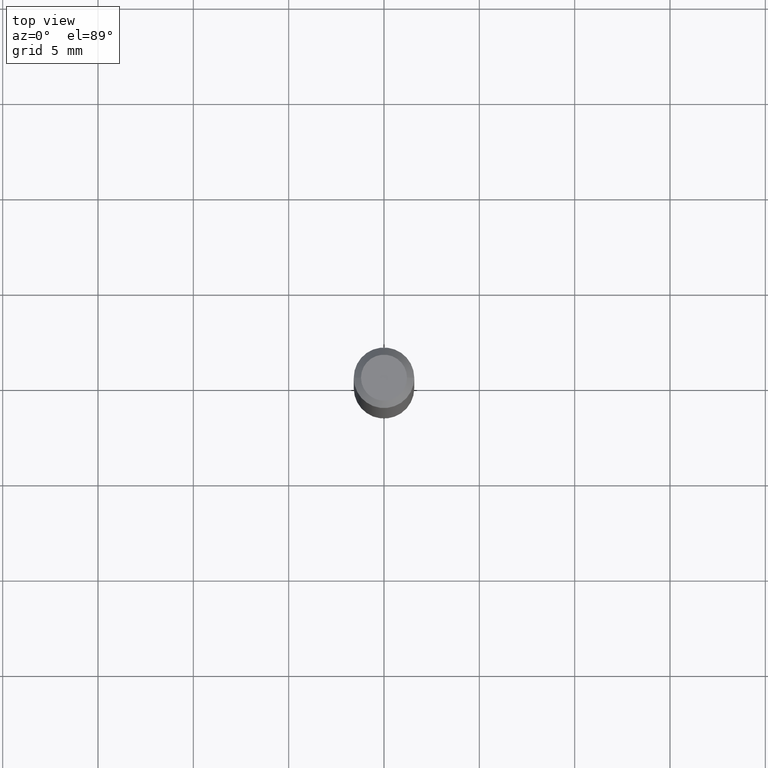
[diagram: clean part render]
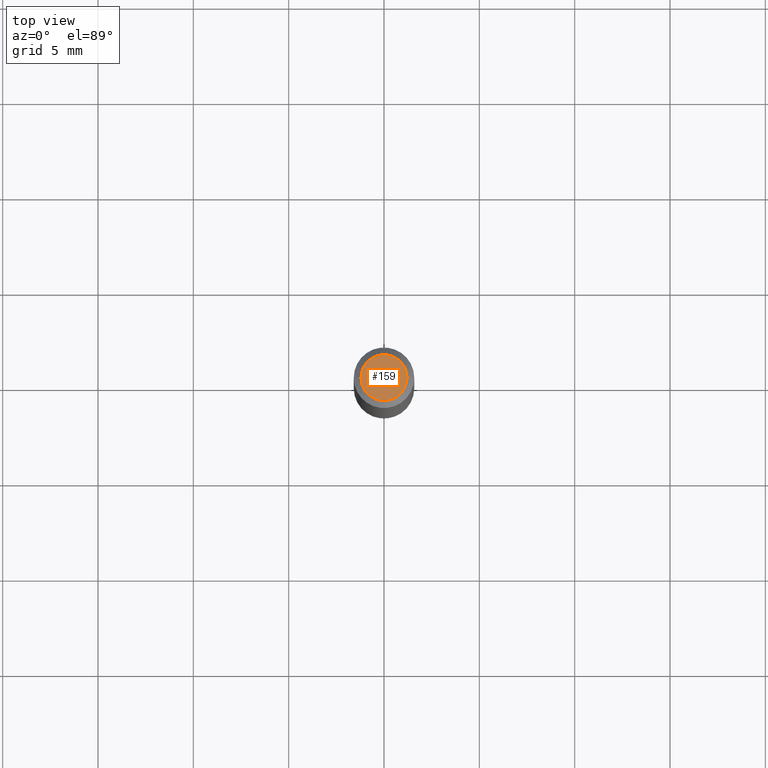
[diagram: same view with one face highlighted and labeled with its STEP entity id]
A machine part, top view. The second image highlights one B-rep face of the part: STEP entity #159.
In plain terms, the highlighted planar face has unit normal (0, -0, -1).
Its self-contained STEP definition (entity closure, byte-faithful):
#6 = FACE_OUTER_BOUND ( 'NONE', #101, .T. ) ;
#15 = CARTESIAN_POINT ( 'NONE',  ( 3.316907271900976096E-16, 0.04749999999999999362, -2.357791577261395620E-17 ) ) ;
#17 = ORIENTED_EDGE ( 'NONE', *, *, #435, .T. ) ;
#87 = DIRECTION ( 'NONE',  ( 1.000000000000000000, -6.982962677686267499E-15, 4.852736867747366768E-29 ) ) ;
#101 = EDGE_LOOP ( 'NONE', ( #447, #17 ) ) ;
#112 = EDGE_CURVE ( 'NONE', #456, #128, #352, .T. ) ;
#128 = VERTEX_POINT ( 'NONE', #395 ) ;
#159 = ADVANCED_FACE ( 'NONE', ( #6 ), #280, .F. ) ;
#160 = CARTESIAN_POINT ( 'NONE',  ( -0.04749999999999999362, 3.578768372314216422E-16, 2.845348956448684646E-16 ) ) ;
#229 = DIRECTION ( 'NONE',  ( -2.445468806185136597E-29, 3.491481338843145583E-15, 1.000000000000000000 ) ) ;
#233 = AXIS2_PLACEMENT_3D ( 'NONE', #373, #229, #87 ) ;
#257 = CARTESIAN_POINT ( 'NONE',  ( -6.958212115706747638E-45, 9.934482783937485755E-31, 2.845348956448708805E-16 ) ) ;
#280 = PLANE ( 'NONE',  #365 ) ;
#294 = AXIS2_PLACEMENT_3D ( 'NONE', #257, #434, #400 ) ;
#352 = CIRCLE ( 'NONE', #294, 0.04749999999999999362 ) ;
#365 = AXIS2_PLACEMENT_3D ( 'NONE', #15, #424, #463 ) ;
#373 = CARTESIAN_POINT ( 'NONE',  ( -6.958212115706747638E-45, 9.934482783937485755E-31, 2.845348956448708805E-16 ) ) ;
#395 = CARTESIAN_POINT ( 'NONE',  ( 0.04749999999999999362, -4.035134999187574186E-16, 2.845348956448734443E-16 ) ) ;
#400 = DIRECTION ( 'NONE',  ( 1.000000000000000000, -6.982962677686267499E-15, 4.852736867747366768E-29 ) ) ;
#409 = CIRCLE ( 'NONE', #233, 0.04749999999999999362 ) ;
#424 = DIRECTION ( 'NONE',  ( 2.438088387897960049E-29, -3.491481338843145188E-15, -1.000000000000000000 ) ) ;
#434 = DIRECTION ( 'NONE',  ( -2.445468806185136597E-29, 3.491481338843145583E-15, 1.000000000000000000 ) ) ;
#435 = EDGE_CURVE ( 'NONE', #128, #456, #409, .T. ) ;
#447 = ORIENTED_EDGE ( 'NONE', *, *, #112, .T. ) ;
#456 = VERTEX_POINT ( 'NONE', #160 ) ;
#463 = DIRECTION ( 'NONE',  ( -1.000000000000000000, 6.982962677686265922E-15, -4.876176775795935793E-29 ) ) ;